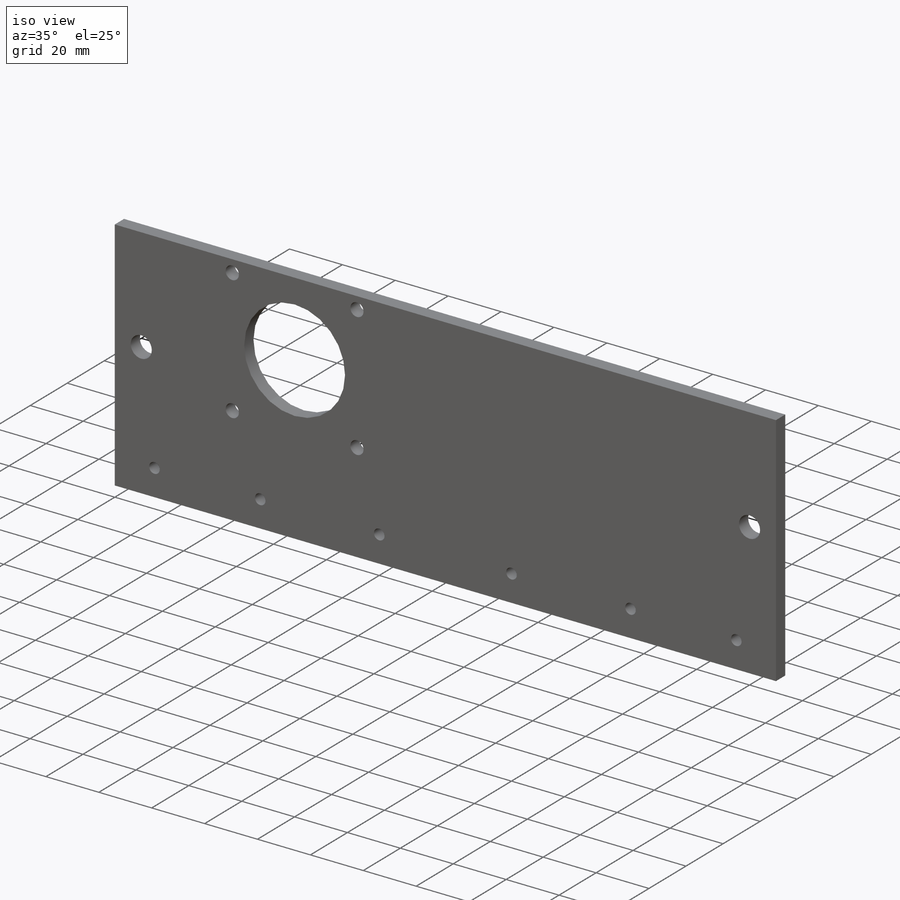
[diagram: iso view]
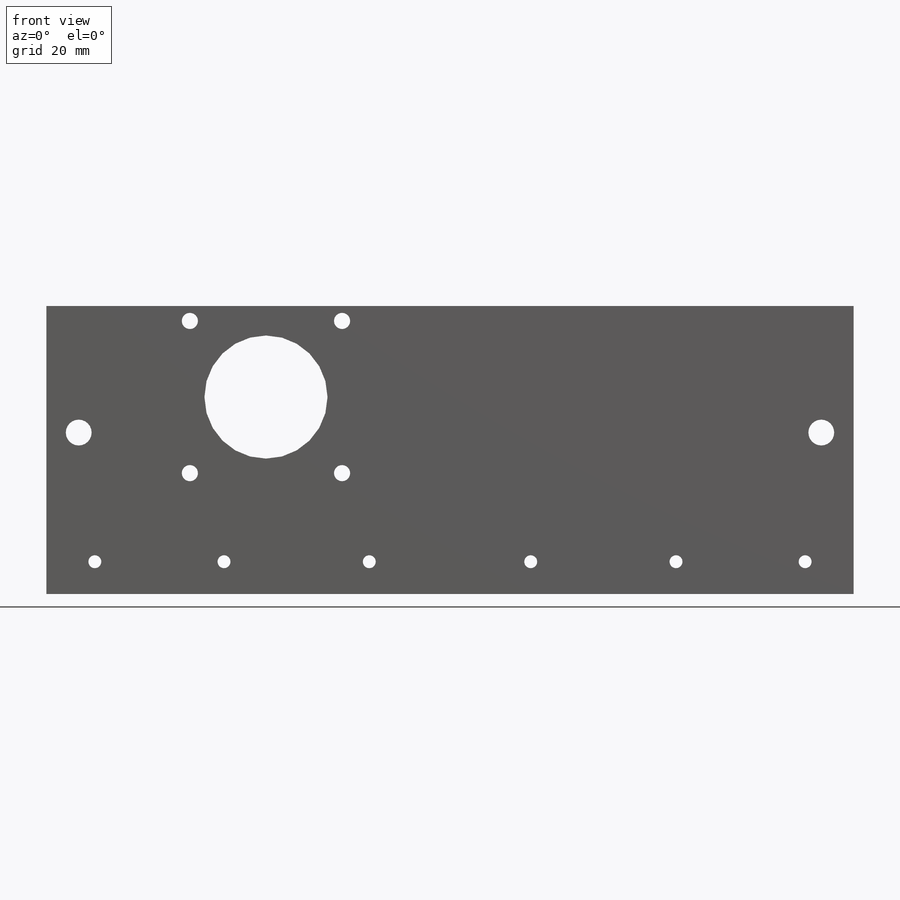
[diagram: front view]
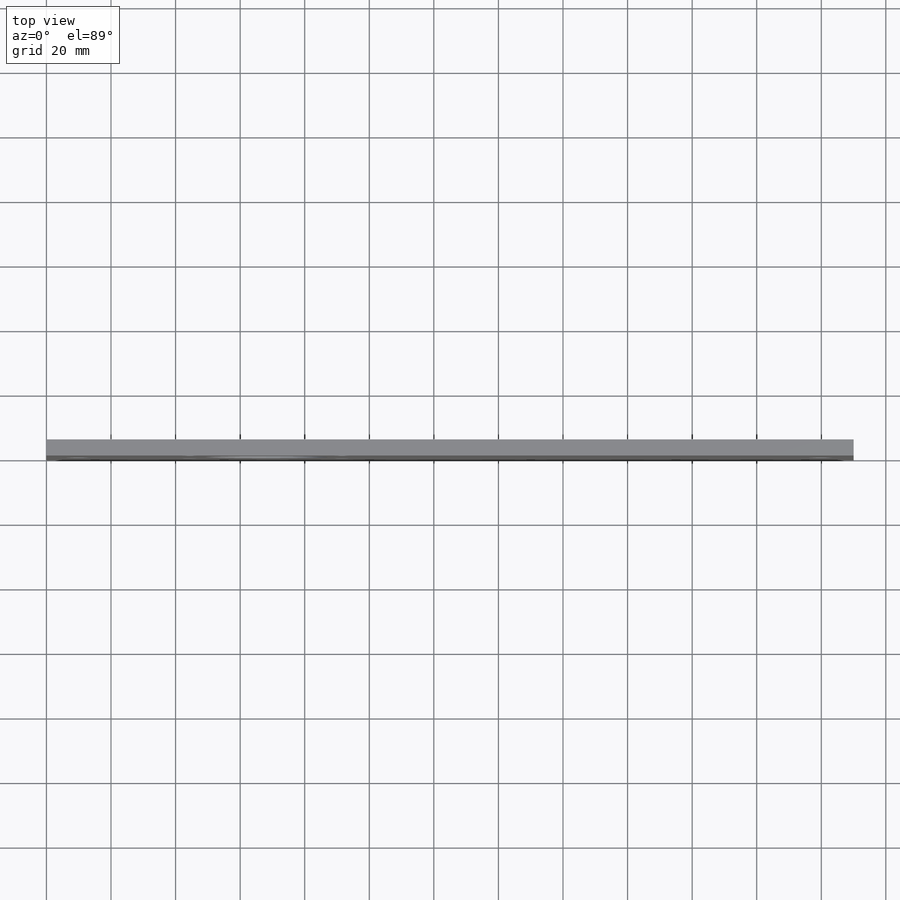
[diagram: top view]
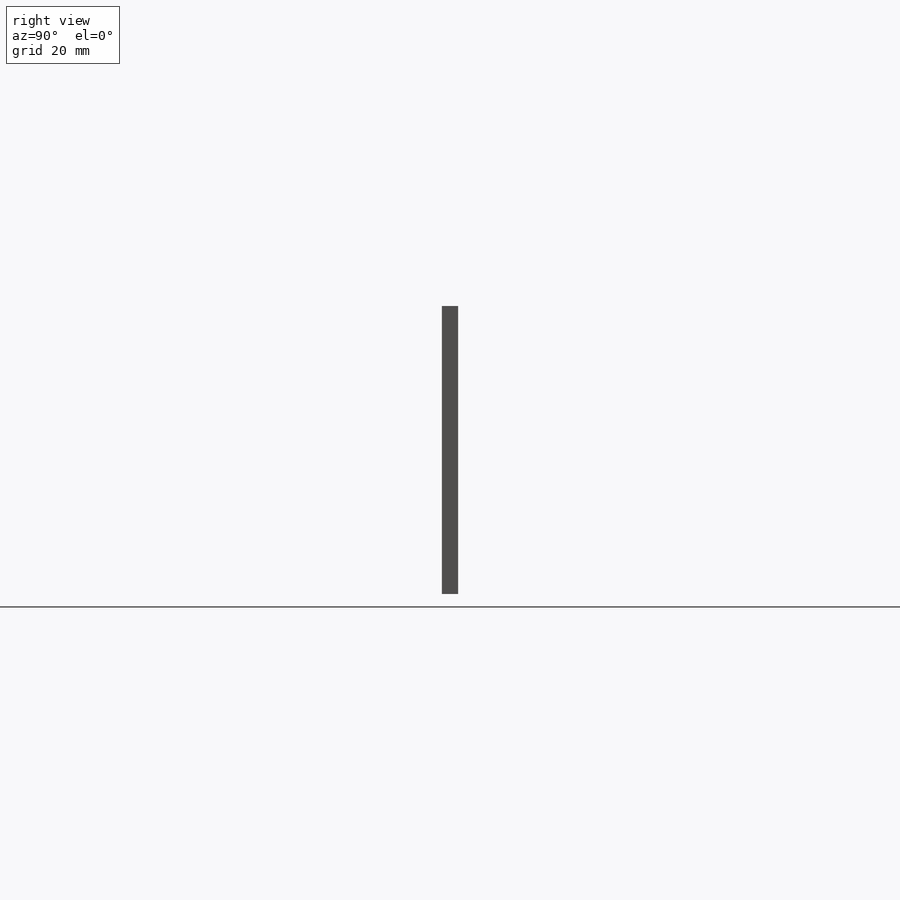
[diagram: right view]
SOLIDWORKS PART (.sldprt)
format: sldprt  version: not decoded by parser v0  size: 235,520 bytes
history: native  units: mm
features: sketch x6, cut_extrude x5, plane x3, material x1, extrude x1 (+9 scaffold rows collapsed)
feature tree (25):
  scaffold x9  (default folders/planes/origin — collapsed)
  material  "Material <nicht festgelegt>"
  plane  "Ebene vorne"
  plane  "Ebene oben"
  plane  "Ebene rechts"
  sketch  "Skizze1"  dims[D1=250.0mm D2=89.2mm]
  extrude  "Aufsatz-Linear austragen1"  Depth=5mm
  sketch  "Skizze2"  dims[c1.D1=38.125mm c1.D2=61.0mm c1.D3=~108.249178mm c2.D3=90.0deg c3.D3=182.0mm]
  cut_extrude  "Schnitt-Linear austragen1"  Depth=27mm
  sketch  "Skizze3"  dims[D1=4.0mm D8=4.0mm D2=15.0mm D3=10.0mm D4=15.0mm D5=55.0mm D6=55.0mm D7=10.0mm D9=100.0mm]
  cut_extrude  "Schnitt-Linear austragen2"  Depth=10mm
  sketch  "Skizze4"  dims[D4=8.0mm D1=10.0mm D2=10.0mm D3=50.0mm]
  cut_extrude  "Schnitt-Linear austragen3"  Depth=10mm
  sketch  "Skizze5"  dims[c1.D1=5.0mm c1.D2=47.14mm c1.D3=47.14mm c2.D2=4.63mm c2.D3=158.43mm c2.D4=47.14mm c2.D5=44.43mm]
  cut_extrude  "Schnitt-Linear austragen4"  Depth=10mm
  sketch  "Skizze6"  dims[D3=4.0mm D1=10.0mm D2=100.0mm]
  cut_extrude  "Schnitt-Linear austragen5"  Depth=10mm
decode coverage: 12 of 12 modeling features carry decoded parameters
note: ~ marks probable driven/reference dimensions
note: suppression state not decoded; provenance and decode notes live in map.json
